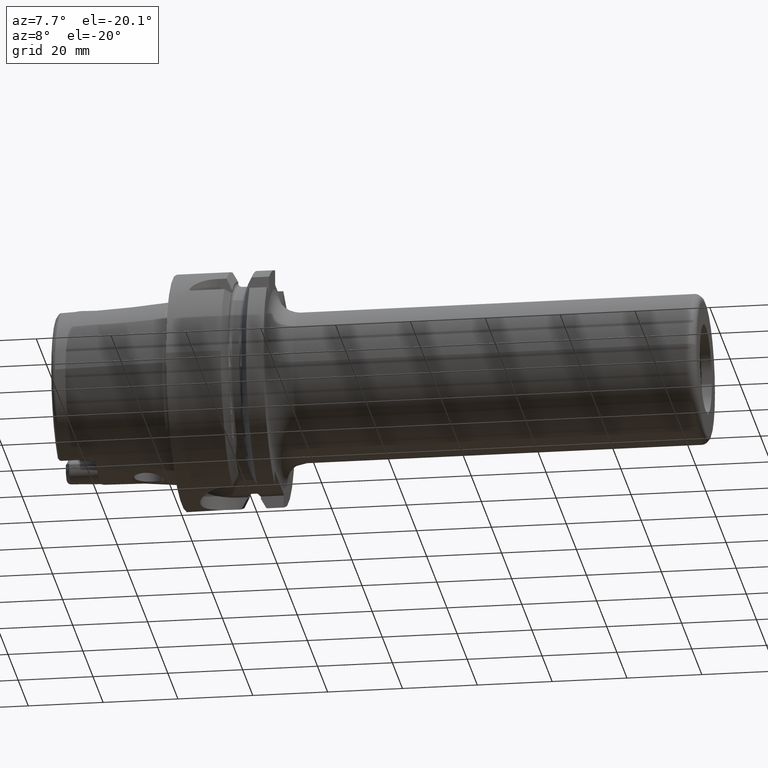
[diagram: clean part render]
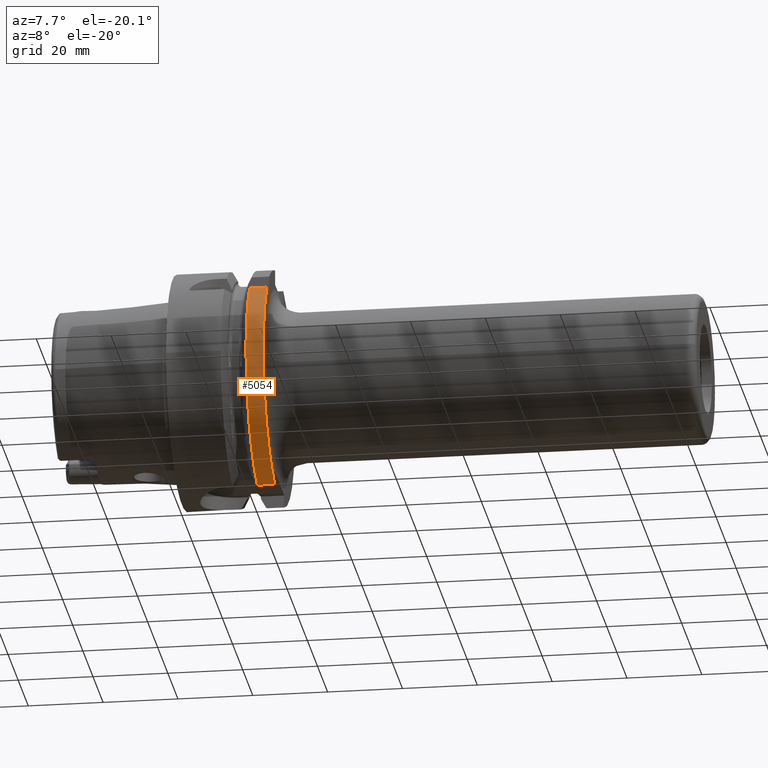
[diagram: same view with one face highlighted and labeled with its STEP entity id]
A machine part, auxiliary view. The second image highlights one B-rep face of the part: STEP entity #5054.
In plain terms, the highlighted cylindrical surface (partial cylindrical patch) has radius 31.5 mm, axis along (1, 0, 0).
Its self-contained STEP definition (entity closure, byte-faithful):
#1729=DIRECTION('',(1.E0,0.E0,0.E0));
#1730=VECTOR('',#1729,4.622500925241E0);
#1731=CARTESIAN_POINT('',(2.137749907476E1,-2.445868966237E1,1.985E1));
#1732=LINE('',#1731,#1730);
#1733=CARTESIAN_POINT('',(2.6E1,0.E0,0.E0));
#1734=DIRECTION('',(1.E0,0.E0,0.E0));
#1735=DIRECTION('',(0.E0,-7.764663384879E-1,6.301587301587E-1));
#1736=AXIS2_PLACEMENT_3D('',#1733,#1734,#1735);
#1866=CARTESIAN_POINT('',(2.137749907476E1,0.E0,0.E0));
#1867=DIRECTION('',(1.E0,0.E0,0.E0));
#1868=DIRECTION('',(0.E0,-7.764663384879E-1,6.301587301587E-1));
#1869=AXIS2_PLACEMENT_3D('',#1866,#1867,#1868);
#1876=CARTESIAN_POINT('',(2.137749907476E1,-9.0175E0,-3.018169467989E1));
#2023=DIRECTION('',(1.E0,0.E0,0.E0));
#2024=VECTOR('',#2023,4.622500925241E0);
#2025=CARTESIAN_POINT('',(2.137749907476E1,-9.0175E0,-3.018169467989E1));
#2026=LINE('',#2025,#2024);
#3059=VERTEX_POINT('',#1876);
#3066=CARTESIAN_POINT('',(2.137749907476E1,-2.445868966237E1,1.985E1));
#3067=CARTESIAN_POINT('',(2.6E1,-2.445868966237E1,1.985E1));
#3068=VERTEX_POINT('',#3066);
#3069=VERTEX_POINT('',#3067);
#3093=CARTESIAN_POINT('',(2.6E1,-9.0175E0,-3.018169467989E1));
#3094=VERTEX_POINT('',#3093);
#5040=CARTESIAN_POINT('',(-3.49E1,0.E0,0.E0));
#5041=DIRECTION('',(1.E0,0.E0,0.E0));
#5042=DIRECTION('',(0.E0,-1.E0,0.E0));
#5043=AXIS2_PLACEMENT_3D('',#5040,#5041,#5042);
#5044=CYLINDRICAL_SURFACE('',#5043,3.15E1);
#5046=ORIENTED_EDGE('',*,*,#5045,.T.);
#5047=ORIENTED_EDGE('',*,*,#4714,.T.);
#5049=ORIENTED_EDGE('',*,*,#5048,.F.);
#5051=ORIENTED_EDGE('',*,*,#5050,.F.);
#5052=EDGE_LOOP('',(#5046,#5047,#5049,#5051));
#5053=FACE_OUTER_BOUND('',#5052,.F.);
#5054=ADVANCED_FACE('',(#5053),#5044,.T.);
#1737=CIRCLE('',#1736,3.15E1);
#1870=CIRCLE('',#1869,3.15E1);
#4714=EDGE_CURVE('',#3069,#3094,#1737,.T.);
#5045=EDGE_CURVE('',#3068,#3069,#1732,.T.);
#5048=EDGE_CURVE('',#3059,#3094,#2026,.T.);
#5050=EDGE_CURVE('',#3068,#3059,#1870,.T.);